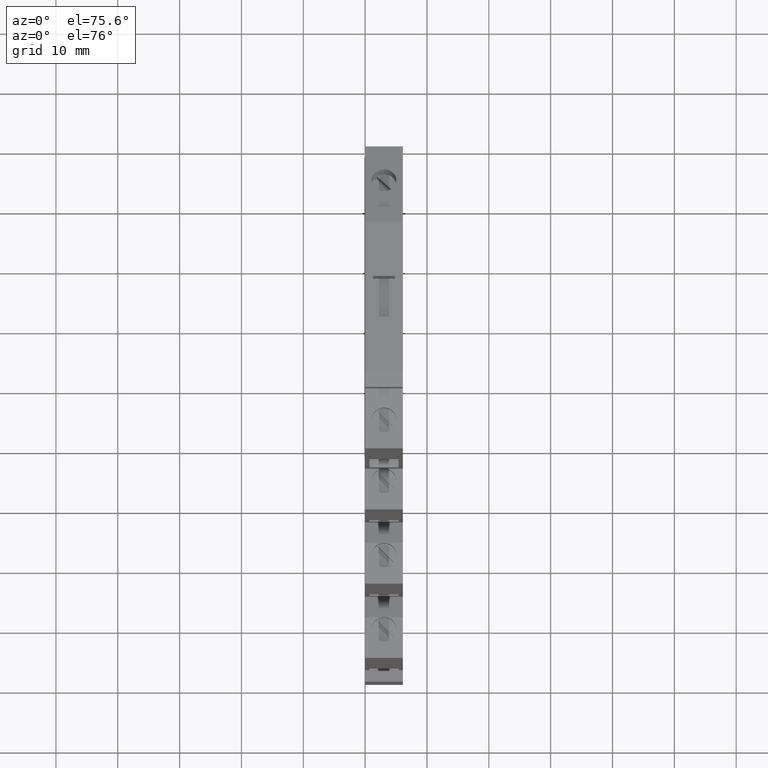
[diagram: clean part render]
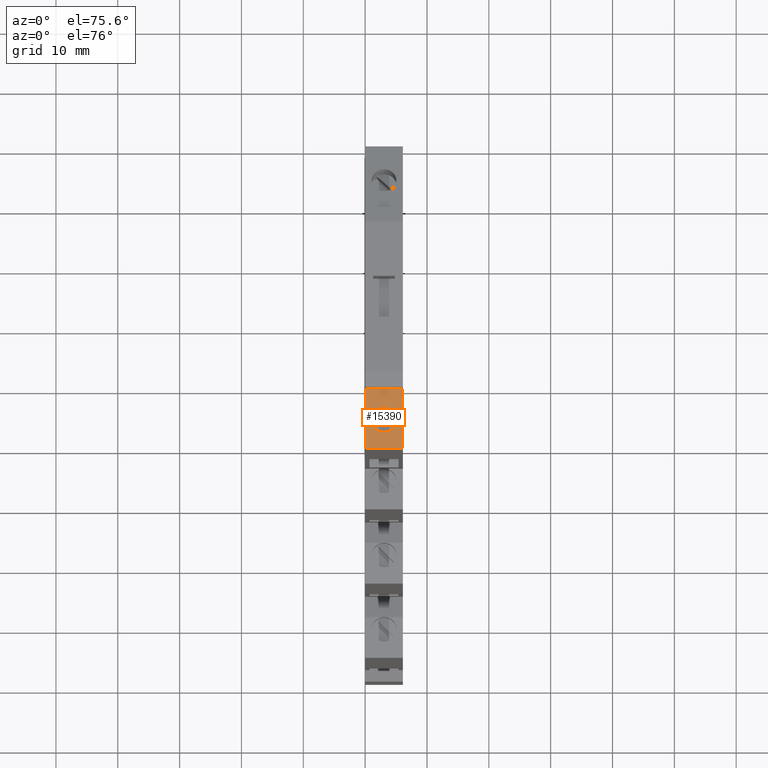
[diagram: same view with one face highlighted and labeled with its STEP entity id]
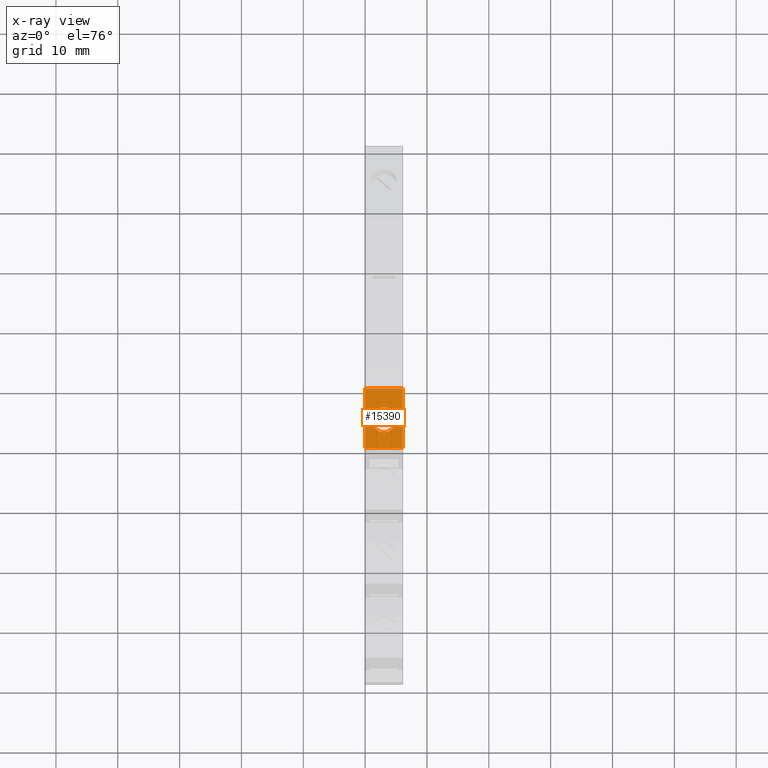
[diagram: x-ray of the same camera — body ghosted, the highlighted face saturated]
A machine part, auxiliary view. The second image highlights one B-rep face of the part: STEP entity #15390.
The next image is the same camera in x-ray: the body ghosted, the highlighted face saturated — about 0% of this face is hidden behind the body in this view.
In plain terms, the highlighted planar face has unit normal (-0, 0.2079, -0.9781).
Its self-contained STEP definition (entity closure, byte-faithful):
#600=CARTESIAN_POINT('',(-19.1010493290035,89.8524352787795,
1.33226762955019E-14));
#610=VERTEX_POINT('',#600);
#1610=CARTESIAN_POINT('',(1.74895067094092,94.2842395895858,
-6.10000000000304));
#1620=DIRECTION('',(0.978147600733828,0.207911690817655,
6.74738043215939E-14));
#1630=VECTOR('',#1620,1.);
#1640=LINE('',#1610,#1630);
#1650=CARTESIAN_POINT('',(-28.601049329011,87.8331479429142,
-6.10000000000513));
#1660=VERTEX_POINT('',#1650);
#1670=CARTESIAN_POINT('',(-19.1010493290036,89.8524352787799,
-6.10000000000447));
#1680=VERTEX_POINT('',#1670);
#1690=EDGE_CURVE('',#1660,#1680,#1640,.T.);
#13640=CARTESIAN_POINT('',(-28.601049329011,87.8331479429138,
8.88178419700125E-16));
#13650=VERTEX_POINT('',#13640);
#13680=CARTESIAN_POINT('',(1.74895067094092,94.2842395895854,
4.44089209850063E-15));
#13690=DIRECTION('',(0.978147600733828,0.207911690817655,
1.11022302462516E-16));
#13700=VECTOR('',#13690,1.);
#13710=LINE('',#13680,#13700);
#13720=EDGE_CURVE('',#13650,#610,#13710,.T.);
#14540=CARTESIAN_POINT('',(-19.1010493290035,89.8524352787796,
-5.30000000000001));
#14550=DIRECTION('',(1.55248271468562E-29,-5.76150921084809E-16,1.));
#14560=VECTOR('',#14550,1.);
#14570=LINE('',#14540,#14560);
#14580=EDGE_CURVE('',#1680,#610,#14570,.T.);
#15080=CARTESIAN_POINT('',(-17.7542575315194,90.1387047125384,
-6.10000000002433));
#15090=DIRECTION('',(0.207911690817655,-0.978147600733828,
-6.72076913208515E-14));
#15100=DIRECTION('',(0.978147600733828,0.207911690817655,
1.36747853577453E-14));
#15110=AXIS2_PLACEMENT_3D('',#15080,#15090,#15100);
#15120=PLANE('',#15110);
#15130=CARTESIAN_POINT('',(-24.1015703656346,88.7895417206754,
-3.05000000000316));
#15140=DIRECTION('',(-0.207911690817655,0.978147600733828,
7.86472707303058E-16));
#15150=DIRECTION('',(0.978147600733828,0.207911690817655,
-1.041628095965E-15));
#15160=AXIS2_PLACEMENT_3D('',#15130,#15140,#15150);
#15170=CIRCLE('',#15160,2.00000030272407);
#15180=CARTESIAN_POINT('',(-22.1452748680581,89.2053651652506,
-3.05000000000316));
#15190=VERTEX_POINT('',#15180);
#15200=CARTESIAN_POINT('',(-26.0578658632111,88.3737182761002,
-3.05000000000315));
#15210=VERTEX_POINT('',#15200);
#15220=EDGE_CURVE('',#15190,#15210,#15170,.T.);
#15230=ORIENTED_EDGE('',*,*,#15220,.F.);
#15240=EDGE_CURVE('',#15210,#15190,#15170,.T.);
#15250=ORIENTED_EDGE('',*,*,#15240,.F.);
#15260=EDGE_LOOP('',(#15250,#15230));
#15270=FACE_BOUND('',#15260,.T.);
#15280=ORIENTED_EDGE('',*,*,#13720,.T.);
#15290=CARTESIAN_POINT('',(-28.6010493290316,87.8331479429058,
-0.10000000000297));
#15300=DIRECTION('',(-9.16144085303849E-14,-1.86935248748301E-14,-1.));
#15310=VECTOR('',#15300,1.);
#15320=LINE('',#15290,#15310);
#15330=EDGE_CURVE('',#13650,#1660,#15320,.T.);
#15340=ORIENTED_EDGE('',*,*,#15330,.F.);
#15350=ORIENTED_EDGE('',*,*,#1690,.F.);
#15360=ORIENTED_EDGE('',*,*,#14580,.F.);
#15370=EDGE_LOOP('',(#15360,#15350,#15340,#15280));
#15380=FACE_OUTER_BOUND('',#15370,.T.);
#15390=ADVANCED_FACE('',(#15270,#15380),#15120,.F.);